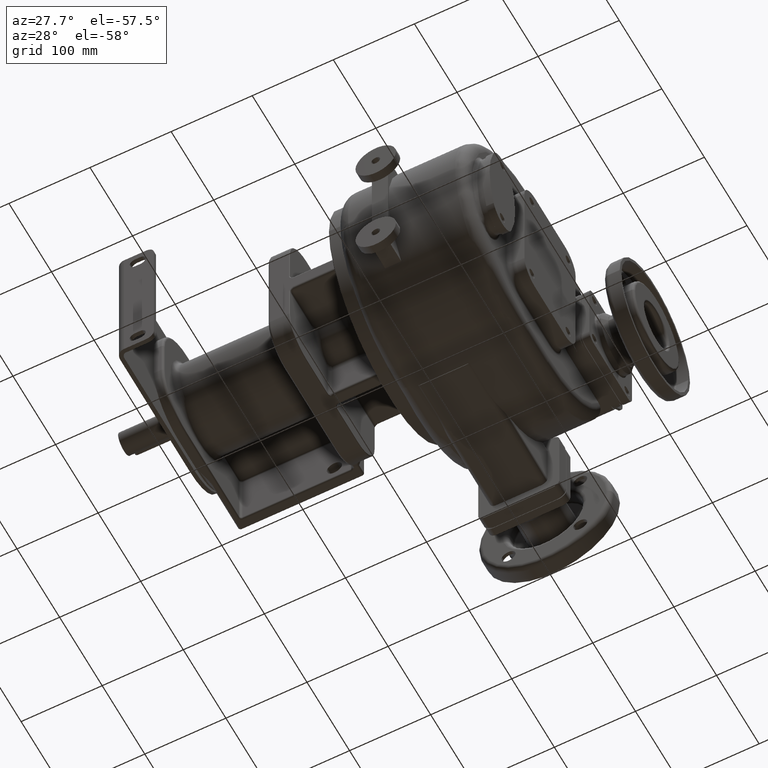
[diagram: clean part render]
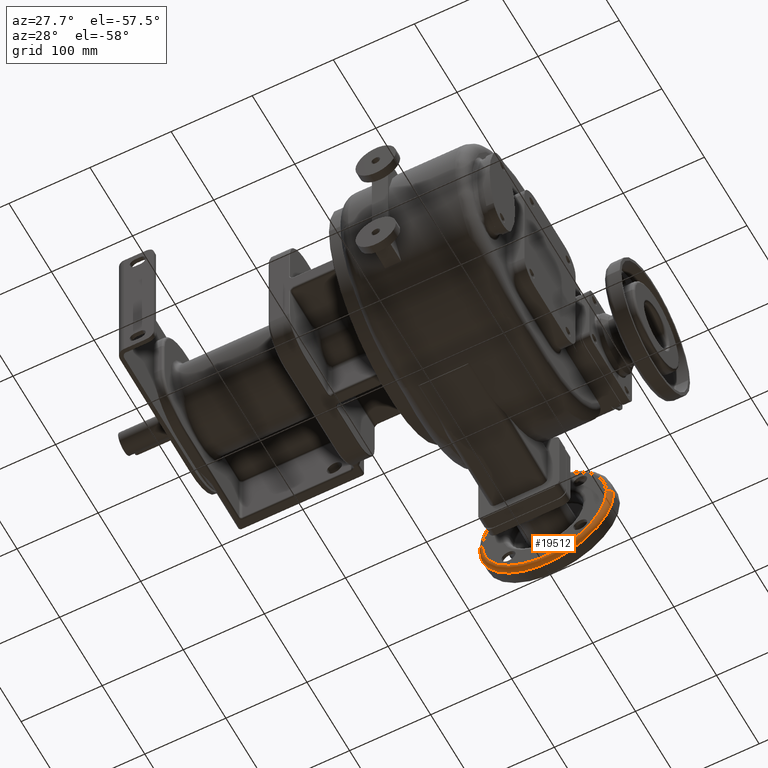
[diagram: same view with one face highlighted and labeled with its STEP entity id]
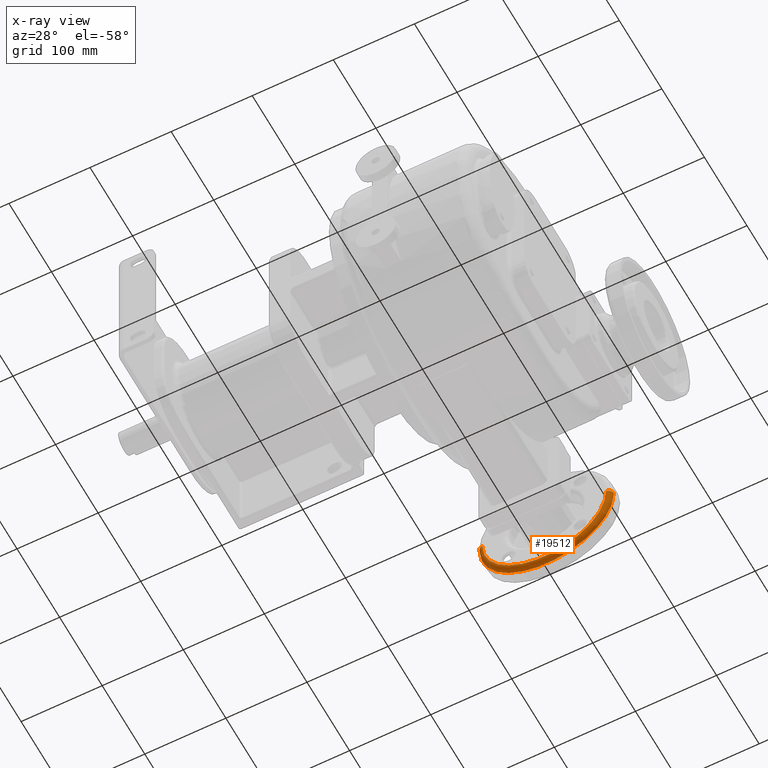
[diagram: x-ray of the same camera — body ghosted, the highlighted face saturated]
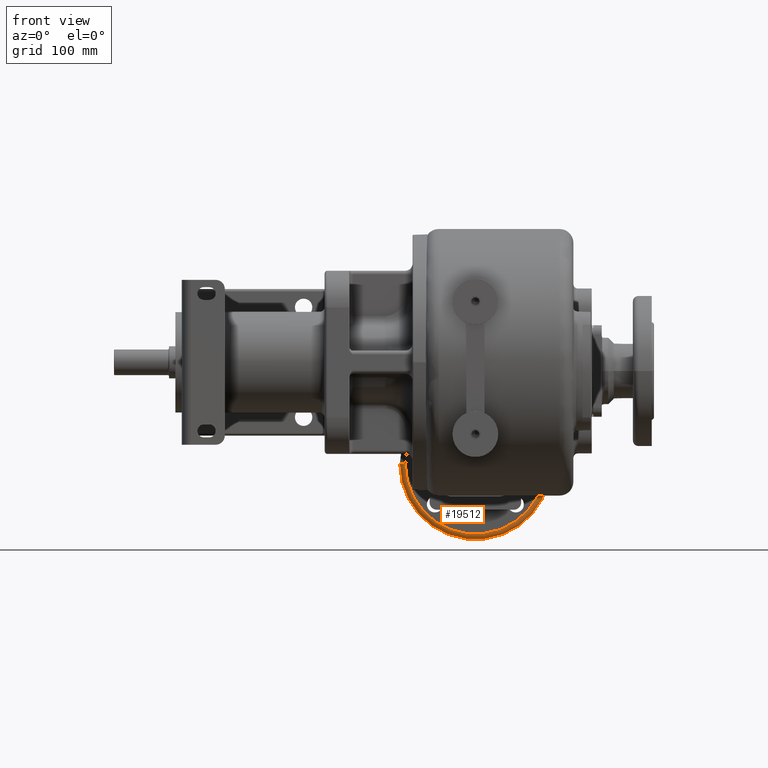
[diagram: same view with one face highlighted and labeled with its STEP entity id]
A machine part, auxiliary view. The second image highlights one B-rep face of the part: STEP entity #19512.
The next image is the same camera in x-ray: the body ghosted, the highlighted face saturated — about 0% of this face is hidden behind the body in this view.
A second angle (front view) of the same face is appended — the face is thin or edge-on in the first view.
In plain terms, the highlighted toroidal blend (fillet) surface has major radius 76.5 mm and minor (blend) radius 6 mm.
Its self-contained STEP definition (entity closure, byte-faithful):
#4615=CARTESIAN_POINT('',(0.E0,3.86E2,-1.11E2));
#4616=DIRECTION('',(0.E0,-1.E0,0.E0));
#4617=DIRECTION('',(-1.E0,0.E0,0.E0));
#4618=AXIS2_PLACEMENT_3D('',#4615,#4616,#4617);
#4665=CARTESIAN_POINT('',(-7.65E1,3.92E2,-1.11E2));
#4666=DIRECTION('',(0.E0,0.E0,1.E0));
#4667=DIRECTION('',(-1.E0,0.E0,0.E0));
#4668=AXIS2_PLACEMENT_3D('',#4665,#4666,#4667);
#4670=CARTESIAN_POINT('',(7.65E1,3.92E2,-1.11E2));
#4671=DIRECTION('',(0.E0,0.E0,-1.E0));
#4672=DIRECTION('',(1.E0,0.E0,0.E0));
#4673=AXIS2_PLACEMENT_3D('',#4670,#4671,#4672);
#4675=CARTESIAN_POINT('',(0.E0,3.92E2,-1.11E2));
#4676=DIRECTION('',(0.E0,-1.E0,0.E0));
#4677=DIRECTION('',(-1.E0,0.E0,0.E0));
#4678=AXIS2_PLACEMENT_3D('',#4675,#4676,#4677);
#11808=CARTESIAN_POINT('',(-8.25E1,3.92E2,-1.11E2));
#11810=VERTEX_POINT('',#11808);
#11811=CARTESIAN_POINT('',(-7.65E1,3.86E2,-1.11E2));
#11812=VERTEX_POINT('',#11811);
#11828=CARTESIAN_POINT('',(8.25E1,3.92E2,-1.11E2));
#11830=VERTEX_POINT('',#11828);
#11831=CARTESIAN_POINT('',(7.65E1,3.86E2,-1.11E2));
#11832=VERTEX_POINT('',#11831);
#19498=CARTESIAN_POINT('',(0.E0,3.92E2,-1.11E2));
#19499=DIRECTION('',(0.E0,1.E0,0.E0));
#19500=DIRECTION('',(1.E0,0.E0,0.E0));
#19501=AXIS2_PLACEMENT_3D('',#19498,#19499,#19500);
#19502=TOROIDAL_SURFACE('',#19501,7.65E1,6.E0);
#19504=ORIENTED_EDGE('',*,*,#19503,.T.);
#19505=ORIENTED_EDGE('',*,*,#19463,.T.);
#19507=ORIENTED_EDGE('',*,*,#19506,.F.);
#19509=ORIENTED_EDGE('',*,*,#19508,.F.);
#19510=EDGE_LOOP('',(#19504,#19505,#19507,#19509));
#19511=FACE_OUTER_BOUND('',#19510,.F.);
#19512=ADVANCED_FACE('',(#19511),#19502,.T.);
#4619=CIRCLE('',#4618,7.65E1);
#4669=CIRCLE('',#4668,6.E0);
#4674=CIRCLE('',#4673,6.E0);
#4679=CIRCLE('',#4678,8.25E1);
#19463=EDGE_CURVE('',#11812,#11832,#4619,.T.);
#19503=EDGE_CURVE('',#11810,#11812,#4669,.T.);
#19506=EDGE_CURVE('',#11830,#11832,#4674,.T.);
#19508=EDGE_CURVE('',#11810,#11830,#4679,.T.);